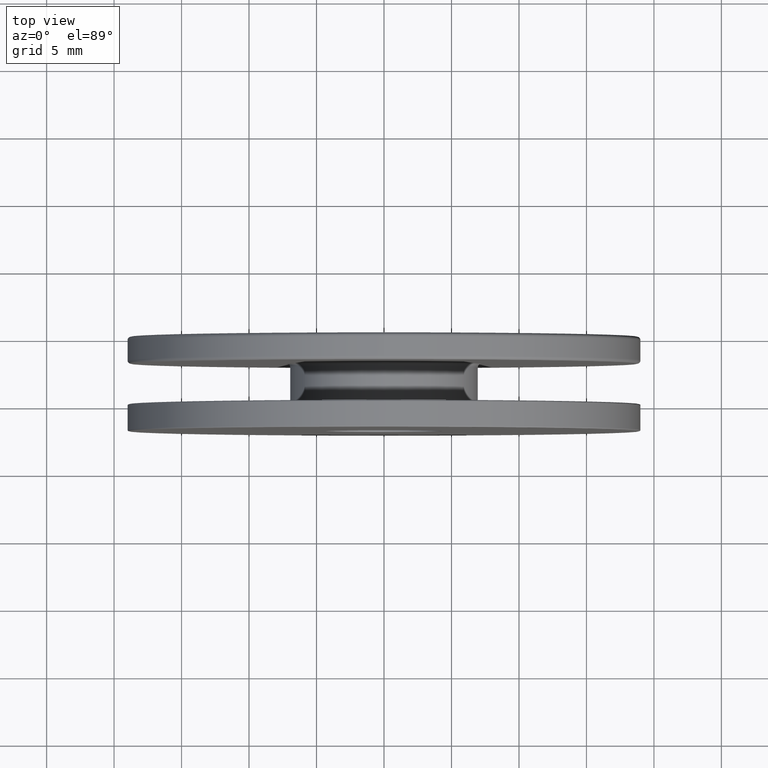
[diagram: clean part render]
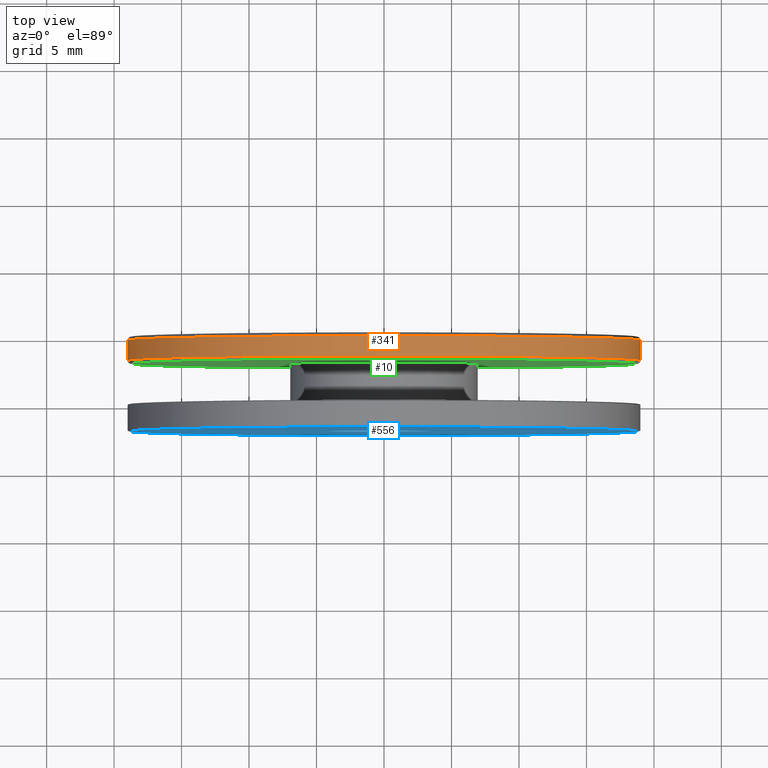
[diagram: same view with three faces highlighted in distinct colors, each labeled with its STEP entity id]
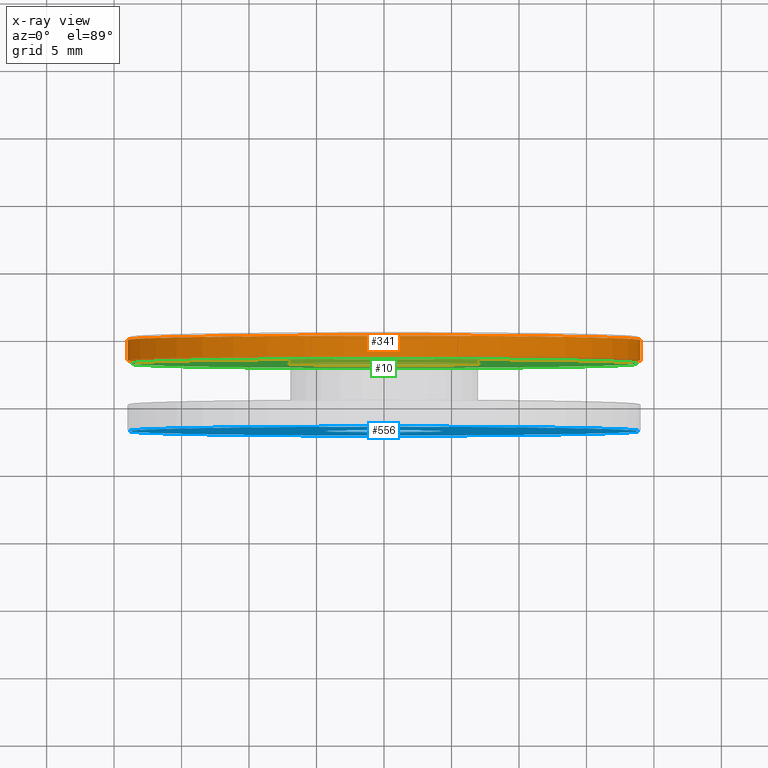
[diagram: x-ray of the same camera — body ghosted, the three highlighted faces saturated]
A machine part, top view with three faces highlighted in distinct colors.
The next image is the same camera in x-ray (body ghosted, the three faces saturated) — at least one of them is partly hidden behind the body in this view.
Their STEP definitions:

[orange] entity #341 — the highlighted cylindrical surface (bore or boss wall) has radius 19 mm, axis along (-0, 1, 0).
#109 = AXIS2_PLACEMENT_3D ( 'NONE', #278, #216, #336 ) ;
#119 = EDGE_CURVE ( 'NONE', #402, #402, #124, .T. ) ;
#124 = CIRCLE ( 'NONE', #109, 19.00000000000000000 ) ;
#131 = DIRECTION ( 'NONE',  ( 0.000000000000000000, 0.000000000000000000, -1.000000000000000000 ) ) ;
#140 = CARTESIAN_POINT ( 'NONE',  ( 0.000000000000000000, 0.2500000000000000000, -19.00000000000000000 ) ) ;
#172 = DIRECTION ( 'NONE',  ( 0.000000000000000000, 0.000000000000000000, -1.000000000000000000 ) ) ;
#216 = DIRECTION ( 'NONE',  ( -0.000000000000000000, -1.000000000000000000, -0.000000000000000000 ) ) ;
#226 = CARTESIAN_POINT ( 'NONE',  ( 0.000000000000000000, 0.000000000000000000, 0.000000000000000000 ) ) ;
#231 = DIRECTION ( 'NONE',  ( -0.000000000000000000, -1.000000000000000000, -0.000000000000000000 ) ) ;
#273 = ORIENTED_EDGE ( 'NONE', *, *, #119, .T. ) ;
#278 = CARTESIAN_POINT ( 'NONE',  ( 0.000000000000000000, 1.749999999999999112, 0.000000000000000000 ) ) ;
#301 = CARTESIAN_POINT ( 'NONE',  ( 0.000000000000000000, 0.2500000000000000000, 0.000000000000000000 ) ) ;
#327 = CYLINDRICAL_SURFACE ( 'NONE', #446, 19.00000000000000000 ) ;
#336 = DIRECTION ( 'NONE',  ( 0.000000000000000000, 0.000000000000000000, 1.000000000000000000 ) ) ;
#341 = ADVANCED_FACE ( 'NONE', ( #598, #727 ), #327, .T. ) ;
#402 = VERTEX_POINT ( 'NONE', #597 ) ;
#418 = DIRECTION ( 'NONE',  ( 0.000000000000000000, 1.000000000000000000, 0.000000000000000000 ) ) ;
#446 = AXIS2_PLACEMENT_3D ( 'NONE', #226, #231, #172 ) ;
#480 = CIRCLE ( 'NONE', #532, 19.00000000000000000 ) ;
#490 = EDGE_LOOP ( 'NONE', ( #547 ) ) ;
#532 = AXIS2_PLACEMENT_3D ( 'NONE', #301, #418, #131 ) ;
#547 = ORIENTED_EDGE ( 'NONE', *, *, #658, .T. ) ;
#597 = CARTESIAN_POINT ( 'NONE',  ( 0.000000000000000000, 1.749999999999999112, 19.00000000000000000 ) ) ;
#598 = FACE_OUTER_BOUND ( 'NONE', #490, .T. ) ;
#629 = VERTEX_POINT ( 'NONE', #140 ) ;
#632 = EDGE_LOOP ( 'NONE', ( #273 ) ) ;
#658 = EDGE_CURVE ( 'NONE', #629, #629, #480, .T. ) ;
#727 = FACE_OUTER_BOUND ( 'NONE', #632, .T. ) ;

[blue] entity #556 — the highlighted planar face has unit normal (0, -1, 0).
#133 = DIRECTION ( 'NONE',  ( 0.000000000000000000, 0.000000000000000000, -1.000000000000000000 ) ) ;
#137 = PLANE ( 'NONE',  #373 ) ;
#138 = AXIS2_PLACEMENT_3D ( 'NONE', #469, #294, #133 ) ;
#190 = EDGE_CURVE ( 'NONE', #615, #615, #552, .T. ) ;
#194 = FACE_OUTER_BOUND ( 'NONE', #239, .T. ) ;
#239 = EDGE_LOOP ( 'NONE', ( #483 ) ) ;
#241 = DIRECTION ( 'NONE',  ( 0.000000000000000000, 0.000000000000000000, -1.000000000000000000 ) ) ;
#262 = VERTEX_POINT ( 'NONE', #303 ) ;
#294 = DIRECTION ( 'NONE',  ( 0.000000000000000000, 1.000000000000000000, 0.000000000000000000 ) ) ;
#303 = CARTESIAN_POINT ( 'NONE',  ( 0.000000000000000000, 0.000000000000000000, -4.350000000000000533 ) ) ;
#310 = EDGE_LOOP ( 'NONE', ( #656 ) ) ;
#344 = AXIS2_PLACEMENT_3D ( 'NONE', #631, #460, #350 ) ;
#350 = DIRECTION ( 'NONE',  ( 0.000000000000000000, 0.000000000000000000, -1.000000000000000000 ) ) ;
#373 = AXIS2_PLACEMENT_3D ( 'NONE', #697, #414, #241 ) ;
#414 = DIRECTION ( 'NONE',  ( 0.000000000000000000, -1.000000000000000000, -0.000000000000000000 ) ) ;
#460 = DIRECTION ( 'NONE',  ( -0.000000000000000000, -1.000000000000000000, -0.000000000000000000 ) ) ;
#469 = CARTESIAN_POINT ( 'NONE',  ( 0.000000000000000000, 0.000000000000000000, 0.000000000000000000 ) ) ;
#483 = ORIENTED_EDGE ( 'NONE', *, *, #190, .T. ) ;
#529 = FACE_BOUND ( 'NONE', #310, .T. ) ;
#542 = CARTESIAN_POINT ( 'NONE',  ( 0.000000000000000000, 0.000000000000000000, -18.89999999999999858 ) ) ;
#552 = CIRCLE ( 'NONE', #344, 18.89999999999999858 ) ;
#556 = ADVANCED_FACE ( 'NONE', ( #194, #529 ), #137, .T. ) ;
#570 = CIRCLE ( 'NONE', #138, 4.350000000000000533 ) ;
#574 = EDGE_CURVE ( 'NONE', #262, #262, #570, .T. ) ;
#615 = VERTEX_POINT ( 'NONE', #542 ) ;
#631 = CARTESIAN_POINT ( 'NONE',  ( 0.000000000000000000, 0.000000000000000000, 0.000000000000000000 ) ) ;
#656 = ORIENTED_EDGE ( 'NONE', *, *, #574, .T. ) ;
#697 = CARTESIAN_POINT ( 'NONE',  ( 0.000000000000000000, 0.000000000000000000, 0.000000000000000000 ) ) ;

[green] entity #10 — the highlighted planar face has unit normal (0, -1, -0).
#4 = DIRECTION ( 'NONE',  ( -0.000000000000000000, -1.000000000000000000, -0.000000000000000000 ) ) ;
#10 = ADVANCED_FACE ( 'NONE', ( #263, #351 ), #678, .T. ) ;
#54 = EDGE_CURVE ( 'NONE', #58, #58, #504, .T. ) ;
#58 = VERTEX_POINT ( 'NONE', #409 ) ;
#115 = CIRCLE ( 'NONE', #559, 7.249999999999999112 ) ;
#130 = AXIS2_PLACEMENT_3D ( 'NONE', #728, #723, #329 ) ;
#188 = EDGE_LOOP ( 'NONE', ( #339 ) ) ;
#227 = AXIS2_PLACEMENT_3D ( 'NONE', #394, #398, #729 ) ;
#263 = FACE_OUTER_BOUND ( 'NONE', #188, .T. ) ;
#264 = EDGE_CURVE ( 'NONE', #641, #641, #115, .T. ) ;
#291 = CARTESIAN_POINT ( 'NONE',  ( 0.000000000000000000, 1.999999999999999112, 0.000000000000000000 ) ) ;
#329 = DIRECTION ( 'NONE',  ( 0.000000000000000000, 0.000000000000000000, 1.000000000000000000 ) ) ;
#339 = ORIENTED_EDGE ( 'NONE', *, *, #54, .T. ) ;
#351 = FACE_BOUND ( 'NONE', #677, .T. ) ;
#394 = CARTESIAN_POINT ( 'NONE',  ( 19.00000000000000000, 1.999999999999999112, 0.000000000000000000 ) ) ;
#398 = DIRECTION ( 'NONE',  ( 0.000000000000000000, 1.000000000000000000, 0.000000000000000000 ) ) ;
#406 = DIRECTION ( 'NONE',  ( 0.000000000000000000, 0.000000000000000000, 1.000000000000000000 ) ) ;
#409 = CARTESIAN_POINT ( 'NONE',  ( 0.000000000000000000, 1.999999999999999112, 18.75000000000000000 ) ) ;
#410 = ORIENTED_EDGE ( 'NONE', *, *, #264, .T. ) ;
#504 = CIRCLE ( 'NONE', #130, 18.75000000000000000 ) ;
#559 = AXIS2_PLACEMENT_3D ( 'NONE', #291, #4, #406 ) ;
#641 = VERTEX_POINT ( 'NONE', #654 ) ;
#654 = CARTESIAN_POINT ( 'NONE',  ( 0.000000000000000000, 1.999999999999999112, 7.249999999999999112 ) ) ;
#677 = EDGE_LOOP ( 'NONE', ( #410 ) ) ;
#678 = PLANE ( 'NONE',  #227 ) ;
#723 = DIRECTION ( 'NONE',  ( 0.000000000000000000, 1.000000000000000000, 0.000000000000000000 ) ) ;
#728 = CARTESIAN_POINT ( 'NONE',  ( 0.000000000000000000, 1.999999999999999112, 0.000000000000000000 ) ) ;
#729 = DIRECTION ( 'NONE',  ( 0.000000000000000000, -0.000000000000000000, 1.000000000000000000 ) ) ;